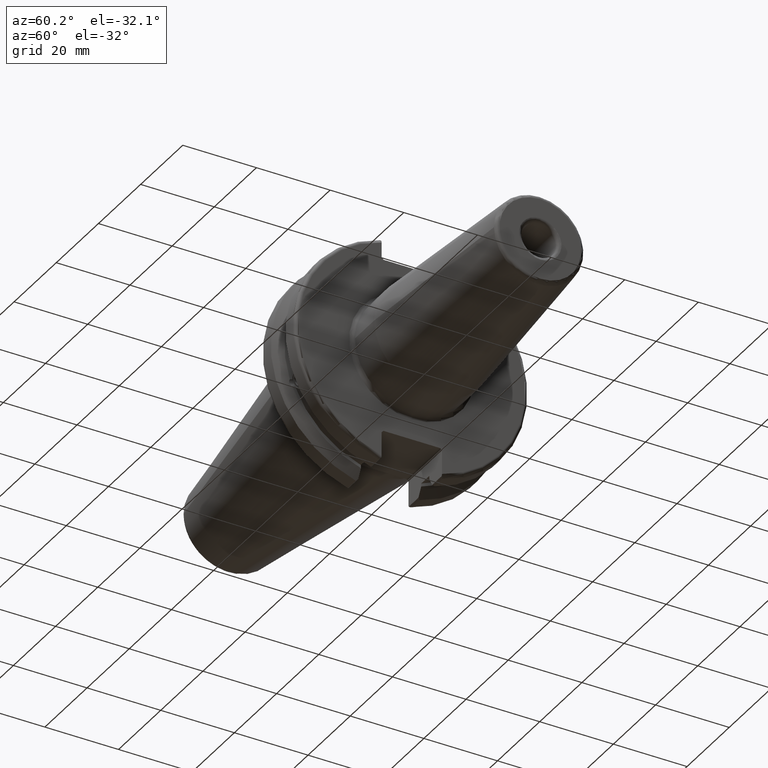
[diagram: clean part render]
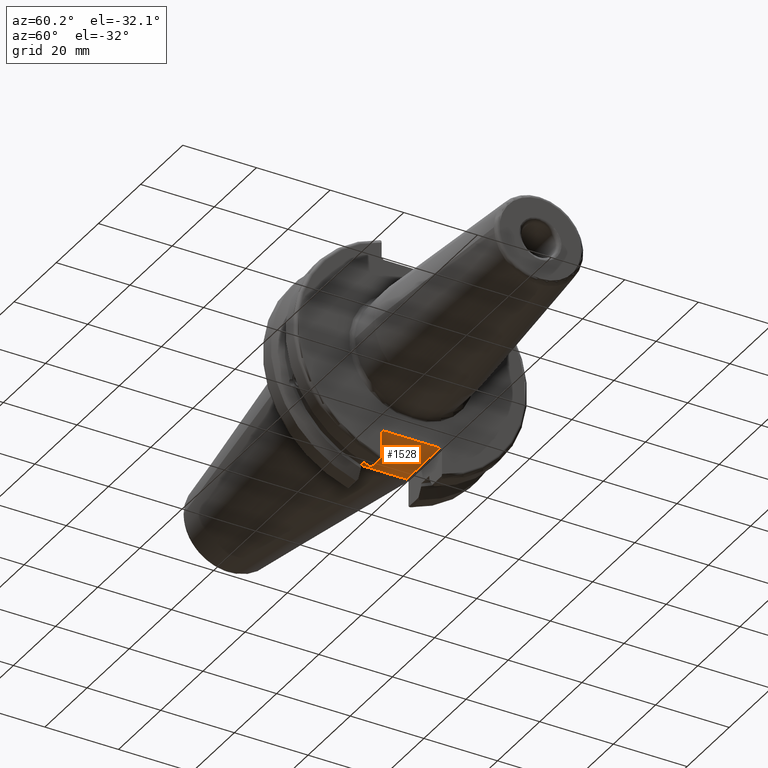
[diagram: same view with one face highlighted and labeled with its STEP entity id]
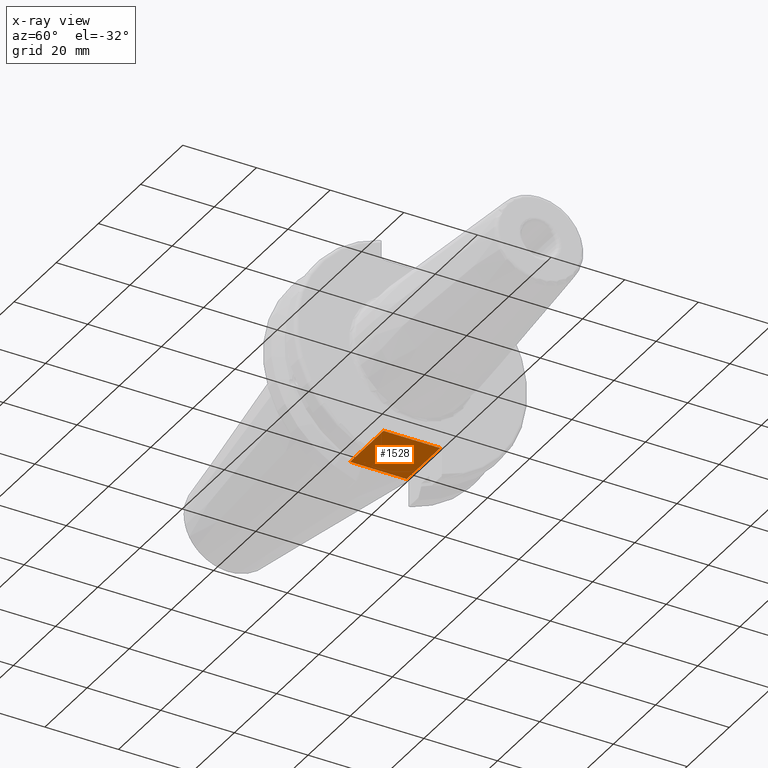
[diagram: x-ray of the same camera — body ghosted, the highlighted face saturated]
A machine part, auxiliary view. The second image highlights one B-rep face of the part: STEP entity #1528.
The next image is the same camera in x-ray: the body ghosted, the highlighted face saturated — about 0% of this face is hidden behind the body in this view.
In plain terms, the highlighted planar face has unit normal (0, 0, 1).
Its self-contained STEP definition (entity closure, byte-faithful):
#117=LINE('',#2263,#209);
#159=LINE('',#2694,#251);
#180=LINE('',#2906,#272);
#181=LINE('',#2908,#273);
#209=VECTOR('',#1816,10.);
#251=VECTOR('',#2032,10.);
#272=VECTOR('',#2111,10.);
#273=VECTOR('',#2114,10.);
#341=PLANE('',#1718);
#415=FACE_OUTER_BOUND('',#515,.T.);
#515=EDGE_LOOP('',(#1337,#1338,#1339,#1340));
#638=VERTEX_POINT('',#2260);
#639=VERTEX_POINT('',#2262);
#726=VERTEX_POINT('',#2691);
#727=VERTEX_POINT('',#2693);
#796=EDGE_CURVE('',#638,#639,#117,.T.);
#913=EDGE_CURVE('',#726,#727,#159,.T.);
#968=EDGE_CURVE('',#639,#726,#180,.T.);
#969=EDGE_CURVE('',#727,#638,#181,.T.);
#1337=ORIENTED_EDGE('',*,*,#968,.F.);
#1338=ORIENTED_EDGE('',*,*,#796,.F.);
#1339=ORIENTED_EDGE('',*,*,#969,.F.);
#1340=ORIENTED_EDGE('',*,*,#913,.F.);
#1528=ADVANCED_FACE('',(#415),#341,.F.);
#1718=AXIS2_PLACEMENT_3D('',#2907,#2112,#2113);
#1816=DIRECTION('',(0.,1.,0.));
#2032=DIRECTION('',(0.,-1.,0.));
#2111=DIRECTION('',(-1.,-1.31581988103722E-16,0.));
#2112=DIRECTION('center_axis',(0.,0.,1.));
#2113=DIRECTION('ref_axis',(1.,0.,0.));
#2114=DIRECTION('',(1.,0.,0.));
#2260=CARTESIAN_POINT('',(19.05,-7.69,-22.6));
#2262=CARTESIAN_POINT('',(19.05,7.69,-22.6));
#2263=CARTESIAN_POINT('',(19.05,-2.77555756156289E-16,-22.6));
#2691=CARTESIAN_POINT('',(3.175,7.69,-22.6));
#2693=CARTESIAN_POINT('',(3.175,-7.69,-22.6));
#2694=CARTESIAN_POINT('',(3.175,15.875,-22.6));
#2906=CARTESIAN_POINT('',(9.44125,7.69,-22.6));
#2907=CARTESIAN_POINT('Origin',(15.7075,-5.55111512312578E-16,-22.6));
#2908=CARTESIAN_POINT('',(17.87875,-7.69,-22.6));